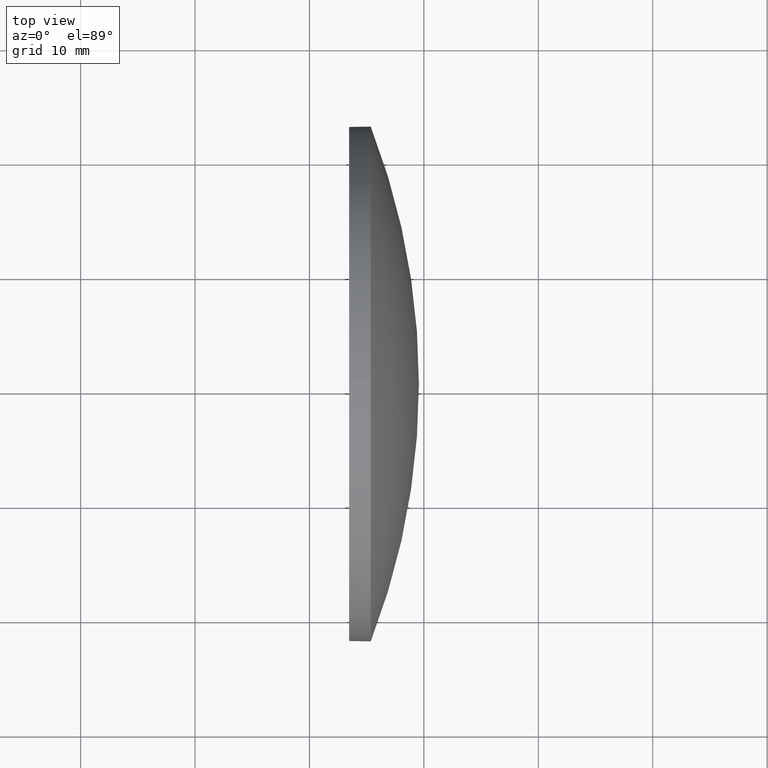
[diagram: clean part render]
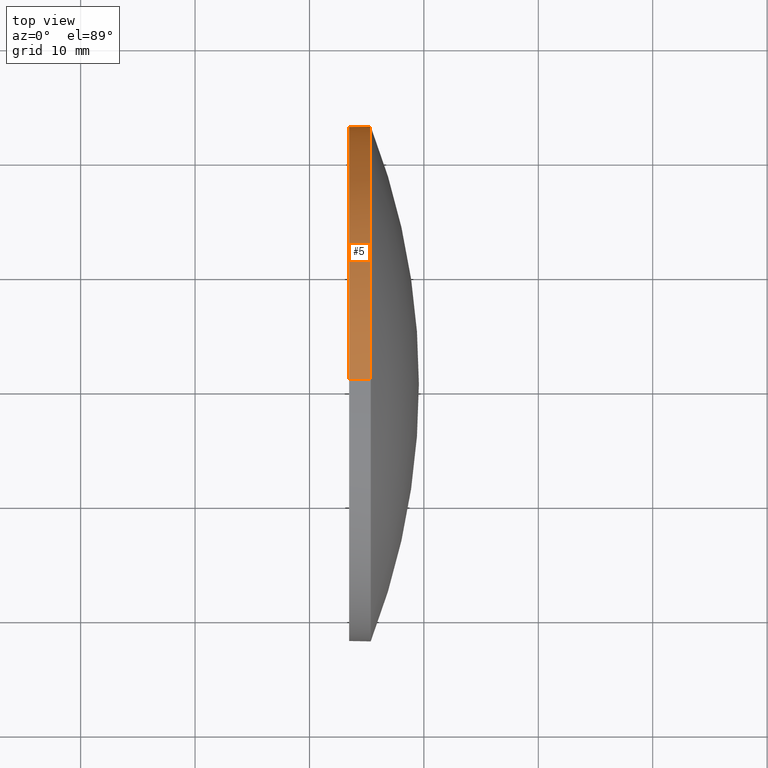
[diagram: same view with one face highlighted and labeled with its STEP entity id]
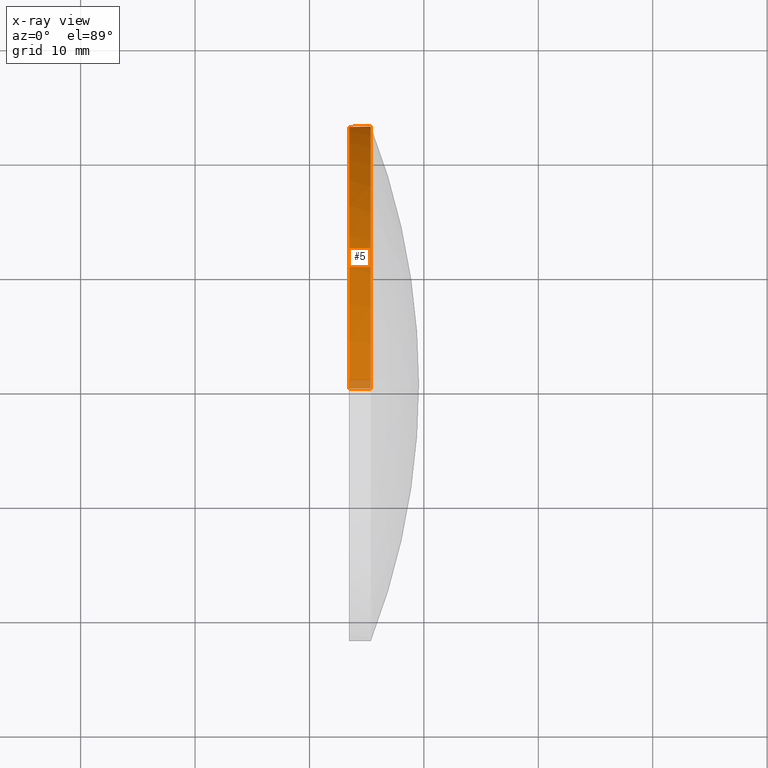
[diagram: x-ray of the same camera — body ghosted, the highlighted face saturated]
A machine part, top view. The second image highlights one B-rep face of the part: STEP entity #5.
The next image is the same camera in x-ray: the body ghosted, the highlighted face saturated — about 3% of this face is hidden behind the body in this view.
In plain terms, the highlighted cylindrical surface (partial cylindrical patch) has radius 22.5 mm, axis along (-1, -0, -0).
Its self-contained STEP definition (entity closure, byte-faithful):
#5 = ADVANCED_FACE ( 'NONE', ( #88 ), #152, .T. ) ;
#6 = CARTESIAN_POINT ( 'NONE',  ( 443.4635203188954600, 60.46347484045998000, 22.50000000000000700 ) ) ;
#13 = VERTEX_POINT ( 'NONE', #6 ) ;
#22 = DIRECTION ( 'NONE',  ( -1.000000000000000000, -0.0000000000000000000, -0.0000000000000000000 ) ) ;
#24 = EDGE_LOOP ( 'NONE', ( #136, #163, #74, #46, #33 ) ) ;
#28 = VECTOR ( 'NONE', #22, 1000.000000000000000 ) ;
#33 = ORIENTED_EDGE ( 'NONE', *, *, #94, .T. ) ;
#38 = EDGE_CURVE ( 'NONE', #95, #13, #71, .T. ) ;
#41 = CARTESIAN_POINT ( 'NONE',  ( 445.3535203188954500, 60.46347484045998000, 0.0000000000000000000 ) ) ;
#45 = CARTESIAN_POINT ( 'NONE',  ( 445.3535203188954500, 60.46347484045998000, 22.50000000000000700 ) ) ;
#46 = ORIENTED_EDGE ( 'NONE', *, *, #38, .F. ) ;
#47 = DIRECTION ( 'NONE',  ( -1.000000000000000000, -0.0000000000000000000, -0.0000000000000000000 ) ) ;
#55 = AXIS2_PLACEMENT_3D ( 'NONE', #140, #99, #80 ) ;
#56 = CIRCLE ( 'NONE', #177, 22.50000000000000700 ) ;
#57 = AXIS2_PLACEMENT_3D ( 'NONE', #41, #63, #59 ) ;
#59 = DIRECTION ( 'NONE',  ( 0.0000000000000000000, 0.0000000000000000000, 1.000000000000000000 ) ) ;
#62 = CIRCLE ( 'NONE', #57, 22.50000000000000700 ) ;
#63 = DIRECTION ( 'NONE',  ( -1.000000000000000000, -0.0000000000000000000, -0.0000000000000000000 ) ) ;
#66 = CARTESIAN_POINT ( 'NONE',  ( 445.3535203188954500, 60.46347484045998000, 0.0000000000000000000 ) ) ;
#71 = LINE ( 'NONE', #115, #28 ) ;
#74 = ORIENTED_EDGE ( 'NONE', *, *, #181, .F. ) ;
#80 = DIRECTION ( 'NONE',  ( 0.0000000000000000000, 0.0000000000000000000, 1.000000000000000000 ) ) ;
#83 = VERTEX_POINT ( 'NONE', #176 ) ;
#85 = DIRECTION ( 'NONE',  ( 0.0000000000000000000, 0.0000000000000000000, 1.000000000000000000 ) ) ;
#86 = VECTOR ( 'NONE', #47, 1000.000000000000000 ) ;
#88 = FACE_OUTER_BOUND ( 'NONE', #24, .T. ) ;
#94 = EDGE_CURVE ( 'NONE', #95, #83, #62, .T. ) ;
#95 = VERTEX_POINT ( 'NONE', #45 ) ;
#99 = DIRECTION ( 'NONE',  ( -1.000000000000000000, -0.0000000000000000000, -0.0000000000000000000 ) ) ;
#113 = CARTESIAN_POINT ( 'NONE',  ( 445.3535203188954500, 60.46347484045998000, -22.50000000000000700 ) ) ;
#115 = CARTESIAN_POINT ( 'NONE',  ( 434.0287404337423700, 60.46347484045998000, 22.50000000000000700 ) ) ;
#119 = VERTEX_POINT ( 'NONE', #113 ) ;
#120 = VERTEX_POINT ( 'NONE', #162 ) ;
#127 = AXIS2_PLACEMENT_3D ( 'NONE', #66, #164, #85 ) ;
#130 = DIRECTION ( 'NONE',  ( 0.0000000000000000000, 0.0000000000000000000, 1.000000000000000000 ) ) ;
#134 = CIRCLE ( 'NONE', #127, 22.50000000000000700 ) ;
#135 = EDGE_CURVE ( 'NONE', #119, #120, #179, .T. ) ;
#136 = ORIENTED_EDGE ( 'NONE', *, *, #161, .T. ) ;
#140 = CARTESIAN_POINT ( 'NONE',  ( 434.0287404337423700, 60.46347484045998000, 0.0000000000000000000 ) ) ;
#149 = CARTESIAN_POINT ( 'NONE',  ( 443.4635203188954600, 60.46347484045998000, 0.0000000000000000000 ) ) ;
#152 = CYLINDRICAL_SURFACE ( 'NONE', #55, 22.50000000000000700 ) ;
#161 = EDGE_CURVE ( 'NONE', #83, #119, #134, .T. ) ;
#162 = CARTESIAN_POINT ( 'NONE',  ( 443.4635203188954600, 60.46347484045998000, -22.50000000000000700 ) ) ;
#163 = ORIENTED_EDGE ( 'NONE', *, *, #135, .T. ) ;
#164 = DIRECTION ( 'NONE',  ( -1.000000000000000000, -0.0000000000000000000, -0.0000000000000000000 ) ) ;
#176 = CARTESIAN_POINT ( 'NONE',  ( 445.3535203188954500, 82.96347484045998000, 0.0000000000000000000 ) ) ;
#177 = AXIS2_PLACEMENT_3D ( 'NONE', #149, #184, #130 ) ;
#178 = CARTESIAN_POINT ( 'NONE',  ( 434.0287404337423700, 60.46347484045998000, -22.50000000000000700 ) ) ;
#179 = LINE ( 'NONE', #178, #86 ) ;
#181 = EDGE_CURVE ( 'NONE', #13, #120, #56, .T. ) ;
#184 = DIRECTION ( 'NONE',  ( -1.000000000000000000, -0.0000000000000000000, -0.0000000000000000000 ) ) ;